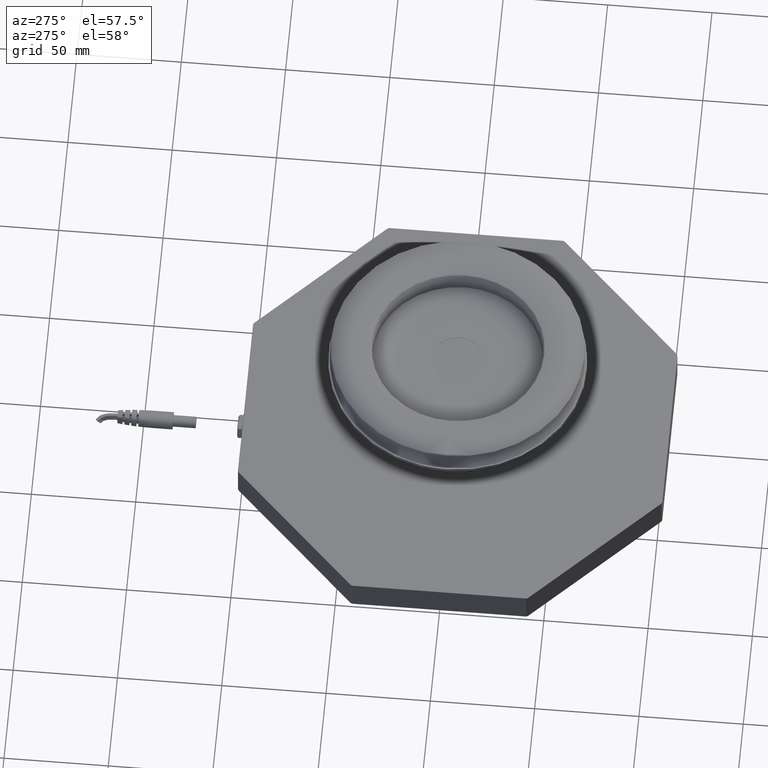
[diagram: clean part render]
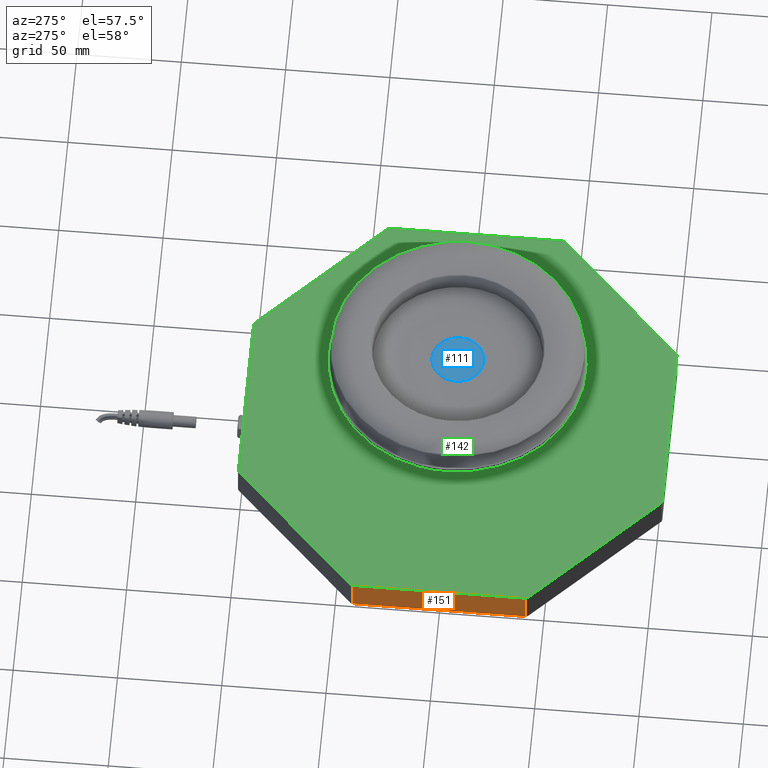
[diagram: same view with three faces highlighted in distinct colors, each labeled with its STEP entity id]
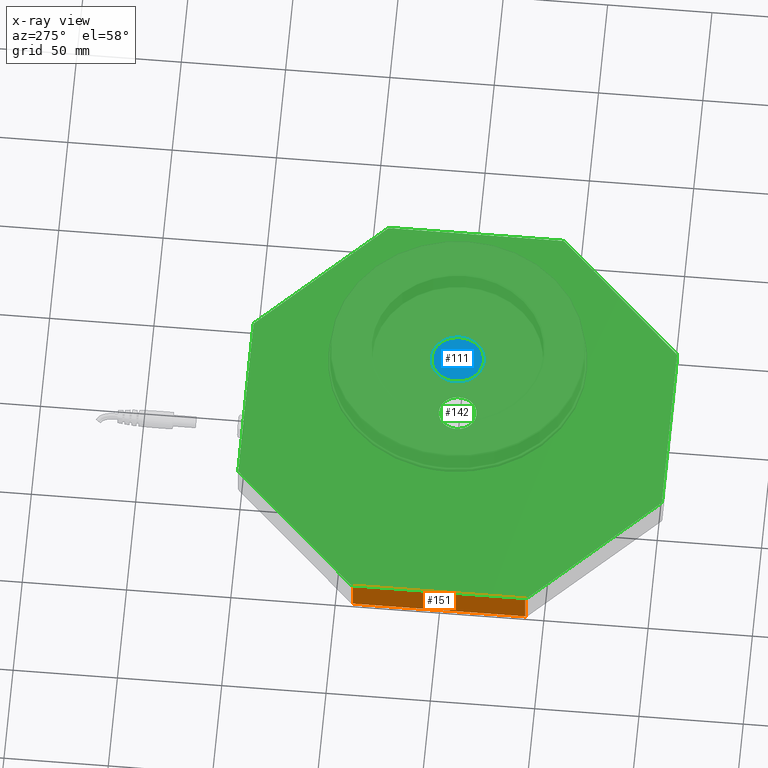
[diagram: x-ray of the same camera — body ghosted, the three highlighted faces saturated]
A machine part, auxiliary view with three faces highlighted in distinct colors.
The next image is the same camera in x-ray (body ghosted, the three faces saturated) — at least one of them is partly hidden behind the body in this view.
Their STEP definitions:

[orange] entity #151 — the highlighted planar face has unit normal (-1, 0, 0).
#62=PLANE('',#2142);
#151=ADVANCED_FACE('',(#285),#62,.T.);
#285=FACE_OUTER_BOUND('',#424,.T.);
#424=EDGE_LOOP('',(#717,#718,#719,#720));
#717=ORIENTED_EDGE('',*,*,#1280,.T.);
#718=ORIENTED_EDGE('',*,*,#1279,.T.);
#719=ORIENTED_EDGE('',*,*,#1252,.F.);
#720=ORIENTED_EDGE('',*,*,#1281,.F.);
#1252=EDGE_CURVE('',#1891,#1892,#1661,.T.);
#1279=EDGE_CURVE('',#1931,#1892,#1688,.T.);
#1280=EDGE_CURVE('',#1932,#1931,#1689,.T.);
#1281=EDGE_CURVE('',#1932,#1891,#1690,.T.);
#1661=B_SPLINE_CURVE_WITH_KNOTS('',1,(#4170,#4171),.UNSPECIFIED.,.F.,.F.,
(2,2),(-83.4226114619414,-0.828427124746209),.UNSPECIFIED.);
#1688=B_SPLINE_CURVE_WITH_KNOTS('',1,(#4240,#4241),.UNSPECIFIED.,.F.,.F.,
(2,2),(-15.7999995949863,0.),.UNSPECIFIED.);
#1689=B_SPLINE_CURVE_WITH_KNOTS('',1,(#4242,#4243),.UNSPECIFIED.,.F.,.F.,
(2,2),(0.,82.5941843371951),.UNSPECIFIED.);
#1690=B_SPLINE_CURVE_WITH_KNOTS('',1,(#4244,#4245),.UNSPECIFIED.,.F.,.F.,
(2,2),(-15.7999995949863,0.),.UNSPECIFIED.);
#1891=VERTEX_POINT('',#3839);
#1892=VERTEX_POINT('',#3840);
#1931=VERTEX_POINT('',#3879);
#1932=VERTEX_POINT('',#3880);
#2142=AXIS2_PLACEMENT_3D('',#3395,#2199,$);
#2199=DIRECTION('',(-1.,0.,0.));
#3395=CARTESIAN_POINT('',(-101.7,-41.2970921685976,0.));
#3839=CARTESIAN_POINT('',(-101.7,-41.2970921685976,0.));
#3840=CARTESIAN_POINT('',(-101.7,41.2970921685975,0.));
#3879=CARTESIAN_POINT('',(-101.7,41.2970921685975,15.7999995949863));
#3880=CARTESIAN_POINT('',(-101.7,-41.2970921685976,15.7999995949863));
#4170=CARTESIAN_POINT('',(-101.7,-41.2970921685976,0.));
#4171=CARTESIAN_POINT('',(-101.7,41.2970921685975,0.));
#4240=CARTESIAN_POINT('',(-101.7,41.2970921685975,15.7999995949863));
#4241=CARTESIAN_POINT('',(-101.7,41.2970921685975,0.));
#4242=CARTESIAN_POINT('',(-101.7,-41.2970921685976,15.7999995949863));
#4243=CARTESIAN_POINT('',(-101.7,41.2970921685975,15.7999995949863));
#4244=CARTESIAN_POINT('',(-101.7,-41.2970921685976,15.7999995949863));
#4245=CARTESIAN_POINT('',(-101.7,-41.2970921685976,0.));

[blue] entity #111 — the highlighted face is a freeform B-spline surface patch.
#111=ADVANCED_FACE('',(#245),#2065,.T.);
#245=FACE_OUTER_BOUND('',#379,.T.);
#379=EDGE_LOOP('',(#524,#525,#526));
#524=ORIENTED_EDGE('',*,*,#1206,.T.);
#525=ORIENTED_EDGE('',*,*,#1187,.T.);
#526=ORIENTED_EDGE('',*,*,#1187,.F.);
#1187=EDGE_CURVE('',#1853,#1852,#1606,.T.);
#1206=EDGE_CURVE('',#1853,#1853,#1526,.T.);
#1526=(
BOUNDED_CURVE()
B_SPLINE_CURVE(2,(#3153,#3154,#3155,#3156,#3157,#3158,#3159,#3160,#3161),
 .UNSPECIFIED.,.T.,.F.)
B_SPLINE_CURVE_WITH_KNOTS((3,2,2,2,3),(0.,97.1617778100464,194.323555620093,
291.485333430139,388.647111240186),.UNSPECIFIED.)
CURVE()
GEOMETRIC_REPRESENTATION_ITEM()
RATIONAL_B_SPLINE_CURVE((1.,0.707106781186548,1.,0.707106781186548,1.,0.707106781186548,
1.,0.707106781186548,1.))
REPRESENTATION_ITEM('')
);
#1606=B_SPLINE_CURVE_WITH_KNOTS('',1,(#2992,#2993,#2994),.UNSPECIFIED.,
 .F.,.F.,(2,1,2),(113.625321816904,122.125210868604,125.9768722975),
 .UNSPECIFIED.);
#1852=VERTEX_POINT('',#2979);
#1853=VERTEX_POINT('',#2980);
#2065=(
BOUNDED_SURFACE()
B_SPLINE_SURFACE(2,1,((#2240,#2241,#2242),(#2243,#2244,#2245),(#2246,#2247,
#2248),(#2249,#2250,#2251),(#2252,#2253,#2254),(#2255,#2256,#2257),(#2258,
#2259,#2260),(#2261,#2262,#2263),(#2264,#2265,#2266)),.UNSPECIFIED.,.T.,
 .F.,.F.)
B_SPLINE_SURFACE_WITH_KNOTS((3,2,2,2,3),(2,1,2),(0.,97.1617778100464,194.323555620093,
291.485333430139,388.647111240186),(113.625321816904,122.125210868604,125.9768722975),
 .UNSPECIFIED.)
GEOMETRIC_REPRESENTATION_ITEM()
RATIONAL_B_SPLINE_SURFACE(((1.,1.,1.),(0.707106781186548,0.707106781186548,
0.707106781186548),(1.,1.,1.),(0.707106781186548,0.707106781186548,0.707106781186548),
(1.,1.,1.),(0.707106781186548,0.707106781186548,0.707106781186548),(1.,
1.,1.),(0.707106781186548,0.707106781186548,0.707106781186548),(1.,1.,1.)))
REPRESENTATION_ITEM('')
SURFACE()
);
#2240=CARTESIAN_POINT('',(-12.499999875906,1.33226762955019E-15,63.877751126152));
#2241=CARTESIAN_POINT('',(-4.00011082420549,-4.16333634234434E-16,63.877751126152));
#2242=CARTESIAN_POINT('',(-0.148449395309268,0.,63.877751126152));
#2243=CARTESIAN_POINT('',(-12.499999875906,-12.3515171266406,63.877751126152));
#2244=CARTESIAN_POINT('',(-4.00011082420549,-3.85165102792297,63.877751126152));
#2245=CARTESIAN_POINT('',(-0.148449395309268,0.,63.877751126152));
#2246=CARTESIAN_POINT('',(-0.148516103131373,-12.3515171266406,63.9064554913639));
#2247=CARTESIAN_POINT('',(-0.148470197227683,-3.85165102792297,63.8867021883285));
#2248=CARTESIAN_POINT('',(-0.148449395309268,0.,63.877751126152));
#2249=CARTESIAN_POINT('',(12.2029676696432,-12.3515171266406,63.9351598565758));
#2250=CARTESIAN_POINT('',(3.70317042975012,-3.85165102792297,63.895653250505));
#2251=CARTESIAN_POINT('',(-0.148449395309268,0.,63.877751126152));
#2252=CARTESIAN_POINT('',(12.2029676696432,-2.8448922209256E-15,63.9351598565758));
#2253=CARTESIAN_POINT('',(3.70317042975012,-5.53575760434143E-17,63.895653250505));
#2254=CARTESIAN_POINT('',(-0.148449395309268,0.,63.877751126152));
#2255=CARTESIAN_POINT('',(12.2029676696432,12.3515171266406,63.9351598565758));
#2256=CARTESIAN_POINT('',(3.70317042975012,3.85165102792297,63.895653250505));
#2257=CARTESIAN_POINT('',(-0.148449395309268,0.,63.877751126152));
#2258=CARTESIAN_POINT('',(-0.148516103131367,12.3515171266406,63.9064554913639));
#2259=CARTESIAN_POINT('',(-0.148470197227683,3.85165102792297,63.8867021883285));
#2260=CARTESIAN_POINT('',(-0.148449395309268,0.,63.877751126152));
#2261=CARTESIAN_POINT('',(-12.499999875906,12.3515171266406,63.877751126152));
#2262=CARTESIAN_POINT('',(-4.00011082420549,3.85165102792297,63.877751126152));
#2263=CARTESIAN_POINT('',(-0.148449395309268,0.,63.877751126152));
#2264=CARTESIAN_POINT('',(-12.499999875906,1.33226762955019E-15,63.877751126152));
#2265=CARTESIAN_POINT('',(-4.00011082420549,-4.16333634234434E-16,63.877751126152));
#2266=CARTESIAN_POINT('',(-0.148449395309268,0.,63.877751126152));
#2979=CARTESIAN_POINT('',(-0.148449395309268,6.79815536723445E-33,63.877751126152));
#2980=CARTESIAN_POINT('',(-12.499999875906,1.33226762955019E-15,63.877751126152));
#2992=CARTESIAN_POINT('',(-12.499999875906,1.33226762955019E-15,63.877751126152));
#2993=CARTESIAN_POINT('',(-4.00011082420549,-4.16333634234434E-16,63.877751126152));
#2994=CARTESIAN_POINT('',(-0.148449395309268,0.,63.877751126152));
#3153=CARTESIAN_POINT('',(-12.499999875906,1.33226762955019E-15,63.877751126152));
#3154=CARTESIAN_POINT('',(-12.499999875906,-12.3515171266406,63.877751126152));
#3155=CARTESIAN_POINT('',(-0.148516103131373,-12.3515171266406,63.9064554913639));
#3156=CARTESIAN_POINT('',(12.2029676696432,-12.3515171266406,63.9351598565759));
#3157=CARTESIAN_POINT('',(12.2029676696432,-2.8448922209256E-15,63.9351598565759));
#3158=CARTESIAN_POINT('',(12.2029676696432,12.3515171266406,63.9351598565759));
#3159=CARTESIAN_POINT('',(-0.148516103131367,12.3515171266406,63.9064554913639));
#3160=CARTESIAN_POINT('',(-12.499999875906,12.3515171266406,63.877751126152));
#3161=CARTESIAN_POINT('',(-12.499999875906,1.33226762955019E-15,63.877751126152));

[green] entity #142 — the highlighted planar face has unit normal (0, 0, 1).
#17=FACE_BOUND('',#414,.T.);
#59=PLANE('',#2139);
#142=ADVANCED_FACE('',(#276,#17),#59,.T.);
#276=FACE_OUTER_BOUND('',#413,.T.);
#413=EDGE_LOOP('',(#666,#667,#668,#669,#670,#671,#672,#673,#674,#675,#676,
#677,#678,#679,#680,#681));
#414=EDGE_LOOP('',(#682));
#666=ORIENTED_EDGE('',*,*,#1300,.F.);
#667=ORIENTED_EDGE('',*,*,#1303,.F.);
#668=ORIENTED_EDGE('',*,*,#1261,.T.);
#669=ORIENTED_EDGE('',*,*,#1305,.F.);
#670=ORIENTED_EDGE('',*,*,#1307,.F.);
#671=ORIENTED_EDGE('',*,*,#1310,.F.);
#672=ORIENTED_EDGE('',*,*,#1260,.T.);
#673=ORIENTED_EDGE('',*,*,#1312,.F.);
#674=ORIENTED_EDGE('',*,*,#1314,.F.);
#675=ORIENTED_EDGE('',*,*,#1317,.F.);
#676=ORIENTED_EDGE('',*,*,#1263,.T.);
#677=ORIENTED_EDGE('',*,*,#1320,.F.);
#678=ORIENTED_EDGE('',*,*,#1323,.F.);
#679=ORIENTED_EDGE('',*,*,#1294,.F.);
#680=ORIENTED_EDGE('',*,*,#1262,.T.);
#681=ORIENTED_EDGE('',*,*,#1298,.F.);
#682=ORIENTED_EDGE('',*,*,#1329,.F.);
#1260=EDGE_CURVE('',#1905,#1909,#1669,.T.);
#1261=EDGE_CURVE('',#1916,#1918,#1670,.T.);
#1262=EDGE_CURVE('',#1912,#1904,#1671,.T.);
#1263=EDGE_CURVE('',#1910,#1917,#1672,.T.);
#1294=EDGE_CURVE('',#1912,#1913,#1533,.T.);
#1298=EDGE_CURVE('',#1903,#1904,#1537,.T.);
#1300=EDGE_CURVE('',#1915,#1903,#1539,.T.);
#1303=EDGE_CURVE('',#1916,#1915,#1542,.T.);
#1305=EDGE_CURVE('',#1907,#1918,#1544,.T.);
#1307=EDGE_CURVE('',#1906,#1907,#1546,.T.);
#1310=EDGE_CURVE('',#1905,#1906,#1549,.T.);
#1312=EDGE_CURVE('',#1908,#1909,#1551,.T.);
#1314=EDGE_CURVE('',#1911,#1908,#1553,.T.);
#1317=EDGE_CURVE('',#1910,#1911,#1556,.T.);
#1320=EDGE_CURVE('',#1914,#1917,#1559,.T.);
#1323=EDGE_CURVE('',#1913,#1914,#1562,.T.);
#1329=EDGE_CURVE('',#1919,#1919,#1568,.T.);
#1533=(
BOUNDED_CURVE()
B_SPLINE_CURVE(3,(#4277,#4278,#4279,#4280),.UNSPECIFIED.,.F.,.F.)
B_SPLINE_CURVE_WITH_KNOTS((4,4),(-3.88578058515407E-16,1.41371250971686),
 .UNSPECIFIED.)
CURVE()
GEOMETRIC_REPRESENTATION_ITEM()
RATIONAL_B_SPLINE_CURVE((1.,1.,1.,1.))
REPRESENTATION_ITEM('')
);
#1537=(
BOUNDED_CURVE()
B_SPLINE_CURVE(3,(#4291,#4292,#4293,#4294),.UNSPECIFIED.,.F.,.F.)
B_SPLINE_CURVE_WITH_KNOTS((4,4),(1.11022302462516E-16,1.41371250971669),
 .UNSPECIFIED.)
CURVE()
GEOMETRIC_REPRESENTATION_ITEM()
RATIONAL_B_SPLINE_CURVE((1.,1.,0.999999999999999,1.))
REPRESENTATION_ITEM('')
);
#1539=(
BOUNDED_CURVE()
B_SPLINE_CURVE(1,(#4298,#4299),.UNSPECIFIED.,.F.,.F.)
B_SPLINE_CURVE_WITH_KNOTS((2,2),(1.33226762955019E-14,82.5941843371951),
 .UNSPECIFIED.)
CURVE()
GEOMETRIC_REPRESENTATION_ITEM()
RATIONAL_B_SPLINE_CURVE((1.,1.))
REPRESENTATION_ITEM('')
);
#1542=(
BOUNDED_CURVE()
B_SPLINE_CURVE(3,(#4307,#4308,#4309,#4310),.UNSPECIFIED.,.F.,.F.)
B_SPLINE_CURVE_WITH_KNOTS((4,4),(-1.11022302462516E-16,1.41371250971687),
 .UNSPECIFIED.)
CURVE()
GEOMETRIC_REPRESENTATION_ITEM()
RATIONAL_B_SPLINE_CURVE((1.,1.,1.,1.))
REPRESENTATION_ITEM('')
);
#1544=(
BOUNDED_CURVE()
B_SPLINE_CURVE(3,(#4315,#4316,#4317,#4318),.UNSPECIFIED.,.F.,.F.)
B_SPLINE_CURVE_WITH_KNOTS((4,4),(-1.11022302462516E-16,1.41371250971667),
 .UNSPECIFIED.)
CURVE()
GEOMETRIC_REPRESENTATION_ITEM()
RATIONAL_B_SPLINE_CURVE((1.,1.,1.,1.))
REPRESENTATION_ITEM('')
);
#1546=(
BOUNDED_CURVE()
B_SPLINE_CURVE(1,(#4322,#4323),.UNSPECIFIED.,.F.,.F.)
B_SPLINE_CURVE_WITH_KNOTS((2,2),(2.08721928629529E-14,82.594184337195),
 .UNSPECIFIED.)
CURVE()
GEOMETRIC_REPRESENTATION_ITEM()
RATIONAL_B_SPLINE_CURVE((1.,1.))
REPRESENTATION_ITEM('')
);
#1549=(
BOUNDED_CURVE()
B_SPLINE_CURVE(3,(#4331,#4332,#4333,#4334),.UNSPECIFIED.,.F.,.F.)
B_SPLINE_CURVE_WITH_KNOTS((4,4),(2.22044604925031E-16,1.41371250971687),
 .UNSPECIFIED.)
CURVE()
GEOMETRIC_REPRESENTATION_ITEM()
RATIONAL_B_SPLINE_CURVE((1.,1.,1.,1.))
REPRESENTATION_ITEM('')
);
#1551=(
BOUNDED_CURVE()
B_SPLINE_CURVE(3,(#4339,#4340,#4341,#4342),.UNSPECIFIED.,.F.,.F.)
B_SPLINE_CURVE_WITH_KNOTS((4,4),(0.,1.41371250971668),.UNSPECIFIED.)
CURVE()
GEOMETRIC_REPRESENTATION_ITEM()
RATIONAL_B_SPLINE_CURVE((1.,1.,1.,1.))
REPRESENTATION_ITEM('')
);
#1553=(
BOUNDED_CURVE()
B_SPLINE_CURVE(1,(#4346,#4347),.UNSPECIFIED.,.F.,.F.)
B_SPLINE_CURVE_WITH_KNOTS((2,2),(-2.45568419681586E-14,82.594184337195),
 .UNSPECIFIED.)
CURVE()
GEOMETRIC_REPRESENTATION_ITEM()
RATIONAL_B_SPLINE_CURVE((1.,1.))
REPRESENTATION_ITEM('')
);
#1556=(
BOUNDED_CURVE()
B_SPLINE_CURVE(3,(#4355,#4356,#4357,#4358),.UNSPECIFIED.,.F.,.F.)
B_SPLINE_CURVE_WITH_KNOTS((4,4),(0.,1.41371250971687),.UNSPECIFIED.)
CURVE()
GEOMETRIC_REPRESENTATION_ITEM()
RATIONAL_B_SPLINE_CURVE((1.,1.,1.,1.))
REPRESENTATION_ITEM('')
);
#1559=(
BOUNDED_CURVE()
B_SPLINE_CURVE(3,(#4366,#4367,#4368,#4369),.UNSPECIFIED.,.F.,.F.)
B_SPLINE_CURVE_WITH_KNOTS((4,4),(0.,1.41371250971667),.UNSPECIFIED.)
CURVE()
GEOMETRIC_REPRESENTATION_ITEM()
RATIONAL_B_SPLINE_CURVE((1.,1.,1.,1.))
REPRESENTATION_ITEM('')
);
#1562=(
BOUNDED_CURVE()
B_SPLINE_CURVE(1,(#4376,#4377),.UNSPECIFIED.,.F.,.F.)
B_SPLINE_CURVE_WITH_KNOTS((2,2),(1.5855276128197E-14,82.594184337195),
 .UNSPECIFIED.)
CURVE()
GEOMETRIC_REPRESENTATION_ITEM()
RATIONAL_B_SPLINE_CURVE((1.,1.))
REPRESENTATION_ITEM('')
);
#1568=(
BOUNDED_CURVE()
B_SPLINE_CURVE(3,(#4441,#4442,#4443,#4444,#4445,#4446,#4447,#4448,#4449,
#4450,#4451,#4452,#4453,#4454,#4455,#4456,#4457,#4458,#4459),
 .UNSPECIFIED.,.T.,.F.)
B_SPLINE_CURVE_WITH_KNOTS((4,1,1,1,1,1,1,1,1,1,1,1,1,1,1,1,4),(0.,3.54351793714502,
7.08703587429005,10.6306129420618,14.1741900098336,17.7177670776053,21.2613441453771,
24.8049433332292,28.3485425210813,31.8920604582169,35.4355783953526,38.9791554631244,
42.5227325308961,46.0663095986679,49.6098866664396,53.1534046035753,56.696922540711),
 .UNSPECIFIED.)
CURVE()
GEOMETRIC_REPRESENTATION_ITEM()
RATIONAL_B_SPLINE_CURVE((1.,0.999999999999999,1.,0.999999999999999,1.,0.999999999999999,
1.,1.,1.,0.999999999999999,1.,0.999999999999999,1.,0.999999999999999,1.,
0.999999999999998,1.,0.999999999999999,1.))
REPRESENTATION_ITEM('')
);
#1669=B_SPLINE_CURVE_WITH_KNOTS('',1,(#4202,#4203),.UNSPECIFIED.,.F.,.F.,
(2,2),(0.,82.5941843371951),.UNSPECIFIED.);
#1670=B_SPLINE_CURVE_WITH_KNOTS('',1,(#4204,#4205),.UNSPECIFIED.,.F.,.F.,
(2,2),(-7.17648163117692E-15,82.5941843371951),.UNSPECIFIED.);
#1671=B_SPLINE_CURVE_WITH_KNOTS('',1,(#4206,#4207),.UNSPECIFIED.,.F.,.F.,
(2,2),(0.,82.5941843371951),.UNSPECIFIED.);
#1672=B_SPLINE_CURVE_WITH_KNOTS('',1,(#4208,#4209),.UNSPECIFIED.,.F.,.F.,
(2,2),(-2.82573964227567E-14,82.5941843371951),.UNSPECIFIED.);
#1903=VERTEX_POINT('',#3851);
#1904=VERTEX_POINT('',#3852);
#1905=VERTEX_POINT('',#3853);
#1906=VERTEX_POINT('',#3854);
#1907=VERTEX_POINT('',#3855);
#1908=VERTEX_POINT('',#3856);
#1909=VERTEX_POINT('',#3857);
#1910=VERTEX_POINT('',#3858);
#1911=VERTEX_POINT('',#3859);
#1912=VERTEX_POINT('',#3860);
#1913=VERTEX_POINT('',#3861);
#1914=VERTEX_POINT('',#3862);
#1915=VERTEX_POINT('',#3863);
#1916=VERTEX_POINT('',#3864);
#1917=VERTEX_POINT('',#3865);
#1918=VERTEX_POINT('',#3866);
#1919=VERTEX_POINT('',#3867);
#2139=AXIS2_PLACEMENT_3D('',#3320,#2196,$);
#2196=DIRECTION('',(0.,0.,1.));
#3320=CARTESIAN_POINT('',(-146.702029679211,-7.105427357601E-15,15.9999995949863));
#3851=CARTESIAN_POINT('',(101.5,-41.2970921685975,15.9999995949863));
#3852=CARTESIAN_POINT('',(100.972792206136,-42.5698843747333,15.9999995949863));
#3853=CARTESIAN_POINT('',(-42.5698843747334,100.972792206136,15.9999995949863));
#3854=CARTESIAN_POINT('',(-41.2970921685976,101.5,15.9999995949863));
#3855=CARTESIAN_POINT('',(41.2970921685975,101.5,15.9999995949863));
#3856=CARTESIAN_POINT('',(-101.5,41.2970921685975,15.9999995949863));
#3857=CARTESIAN_POINT('',(-100.972792206136,42.5698843747333,15.9999995949863));
#3858=CARTESIAN_POINT('',(-100.972792206136,-42.5698843747334,15.9999995949863));
#3859=CARTESIAN_POINT('',(-101.5,-41.2970921685976,15.9999995949863));
#3860=CARTESIAN_POINT('',(42.5698843747334,-100.972792206136,15.9999995949863));
#3861=CARTESIAN_POINT('',(41.2970921685976,-101.5,15.9999995949863));
#3862=CARTESIAN_POINT('',(-41.2970921685975,-101.5,15.9999995949863));
#3863=CARTESIAN_POINT('',(101.5,41.2970921685976,15.9999995949863));
#3864=CARTESIAN_POINT('',(100.972792206136,42.5698843747334,15.9999995949863));
#3865=CARTESIAN_POINT('',(-42.5698843747333,-100.972792206136,15.9999995949863));
#3866=CARTESIAN_POINT('',(42.5698843747333,100.972792206136,15.9999995949863));
#3867=CARTESIAN_POINT('',(-6.38083013513478,-6.38083013513028,15.9999995949863));
#4202=CARTESIAN_POINT('',(-42.5698843747334,100.972792206136,15.9999995949863));
#4203=CARTESIAN_POINT('',(-100.972792206136,42.5698843747333,15.9999995949863));
#4204=CARTESIAN_POINT('',(100.972792206136,42.5698843747334,15.9999995949863));
#4205=CARTESIAN_POINT('',(42.5698843747333,100.972792206136,15.9999995949863));
#4206=CARTESIAN_POINT('',(42.5698843747334,-100.972792206136,15.9999995949863));
#4207=CARTESIAN_POINT('',(100.972792206136,-42.5698843747333,15.9999995949863));
#4208=CARTESIAN_POINT('',(-100.972792206136,-42.5698843747334,15.9999995949863));
#4209=CARTESIAN_POINT('',(-42.5698843747333,-100.972792206136,15.9999995949863));
#4277=CARTESIAN_POINT('',(42.5698843747334,-100.972792206136,15.9999995949863));
#4278=CARTESIAN_POINT('',(42.237554740304,-101.307823786989,15.9999995949863));
#4279=CARTESIAN_POINT('',(41.7689878093945,-101.501910564524,15.9999995949863));
#4280=CARTESIAN_POINT('',(41.2970921685976,-101.5,15.9999995949863));
#4291=CARTESIAN_POINT('',(101.5,-41.2970921685975,15.9999995949863));
#4292=CARTESIAN_POINT('',(101.501910564609,-41.7689878093948,15.9999995949863));
#4293=CARTESIAN_POINT('',(101.307823786947,-42.237554740304,15.9999995949863));
#4294=CARTESIAN_POINT('',(100.972792206136,-42.5698843747333,15.9999995949863));
#4298=CARTESIAN_POINT('',(101.5,41.2970921685976,15.9999995949863));
#4299=CARTESIAN_POINT('',(101.5,-41.2970921685975,15.9999995949863));
#4307=CARTESIAN_POINT('',(100.972792206136,42.5698843747334,15.9999995949863));
#4308=CARTESIAN_POINT('',(101.307823786989,42.237554740304,15.9999995949863));
#4309=CARTESIAN_POINT('',(101.501910564524,41.7689878093945,15.9999995949863));
#4310=CARTESIAN_POINT('',(101.5,41.2970921685976,15.9999995949863));
#4315=CARTESIAN_POINT('',(41.2970921685975,101.5,15.9999995949863));
#4316=CARTESIAN_POINT('',(41.7689878093948,101.501910564609,15.9999995949863));
#4317=CARTESIAN_POINT('',(42.2375547403039,101.307823786947,15.9999995949863));
#4318=CARTESIAN_POINT('',(42.5698843747333,100.972792206136,15.9999995949863));
#4322=CARTESIAN_POINT('',(-41.2970921685976,101.5,15.9999995949863));
#4323=CARTESIAN_POINT('',(41.2970921685975,101.5,15.9999995949863));
#4331=CARTESIAN_POINT('',(-42.5698843747334,100.972792206136,15.9999995949863));
#4332=CARTESIAN_POINT('',(-42.237554740304,101.307823786989,15.9999995949863));
#4333=CARTESIAN_POINT('',(-41.7689878093945,101.501910564524,15.9999995949863));
#4334=CARTESIAN_POINT('',(-41.2970921685976,101.5,15.9999995949863));
#4339=CARTESIAN_POINT('',(-101.5,41.2970921685975,15.9999995949863));
#4340=CARTESIAN_POINT('',(-101.501910564609,41.7689878093948,15.9999995949863));
#4341=CARTESIAN_POINT('',(-101.307823786947,42.2375547403039,15.9999995949863));
#4342=CARTESIAN_POINT('',(-100.972792206136,42.5698843747333,15.9999995949863));
#4346=CARTESIAN_POINT('',(-101.5,-41.2970921685976,15.9999995949863));
#4347=CARTESIAN_POINT('',(-101.5,41.2970921685975,15.9999995949863));
#4355=CARTESIAN_POINT('',(-100.972792206136,-42.5698843747334,15.9999995949863));
#4356=CARTESIAN_POINT('',(-101.307823786989,-42.237554740304,15.9999995949863));
#4357=CARTESIAN_POINT('',(-101.501910564524,-41.7689878093945,15.9999995949863));
#4358=CARTESIAN_POINT('',(-101.5,-41.2970921685976,15.9999995949863));
#4366=CARTESIAN_POINT('',(-41.2970921685975,-101.5,15.9999995949863));
#4367=CARTESIAN_POINT('',(-41.7689878093948,-101.501910564609,15.9999995949863));
#4368=CARTESIAN_POINT('',(-42.237554740304,-101.307823786947,15.9999995949863));
#4369=CARTESIAN_POINT('',(-42.5698843747333,-100.972792206136,15.9999995949863));
#4376=CARTESIAN_POINT('',(41.2970921685976,-101.5,15.9999995949863));
#4377=CARTESIAN_POINT('',(-41.2970921685975,-101.5,15.9999995949863));
#4441=CARTESIAN_POINT('',(-6.38083013513478,-6.38083013513029,15.9999995949863));
#4442=CARTESIAN_POINT('',(-5.54592931350117,-7.21622667679494,15.9999995949863));
#4443=CARTESIAN_POINT('',(-3.54324879877945,-8.55450412127356,15.9999995949863));
#4444=CARTESIAN_POINT('',(-5.05685288683112E-5,-9.25861724854056,15.9999995949863));
#4445=CARTESIAN_POINT('',(3.54350220330881,-8.55463409249644,15.9999995949863));
#4446=CARTESIAN_POINT('',(6.54707898039067,-6.54712428920378,15.9999995949863));
#4447=CARTESIAN_POINT('',(8.55465702646785,-3.5435323118147,15.9999995949863));
#4448=CARTESIAN_POINT('',(9.25855405388592,1.7539300563918E-5,15.9999995949863));
#4449=CARTESIAN_POINT('',(8.55460850490799,3.54336287539025,15.9999995949863));
#4450=CARTESIAN_POINT('',(6.54684572142988,6.54698716139229,15.9999995949863));
#4451=CARTESIAN_POINT('',(3.54342005088086,8.55452965340958,15.9999995949863));
#4452=CARTESIAN_POINT('',(-3.62467445009785E-5,9.25860532678787,15.9999995949863));
#4453=CARTESIAN_POINT('',(-3.54345446884063,8.55464051089673,15.9999995949863));
#4454=CARTESIAN_POINT('',(-6.54710406010152,6.54712253893374,15.9999995949863));
#4455=CARTESIAN_POINT('',(-8.55464373439798,3.5435211384138,15.9999995949863));
#4456=CARTESIAN_POINT('',(-9.25860228533022,-4.93307616729056E-5,15.9999995949863));
#4457=CARTESIAN_POINT('',(-8.55454880055223,-3.54318556665766,15.9999995949863));
#4458=CARTESIAN_POINT('',(-7.21627243442229,-5.54592839919878,15.9999995949863));
#4459=CARTESIAN_POINT('',(-6.38083013513478,-6.38083013513029,15.9999995949863));